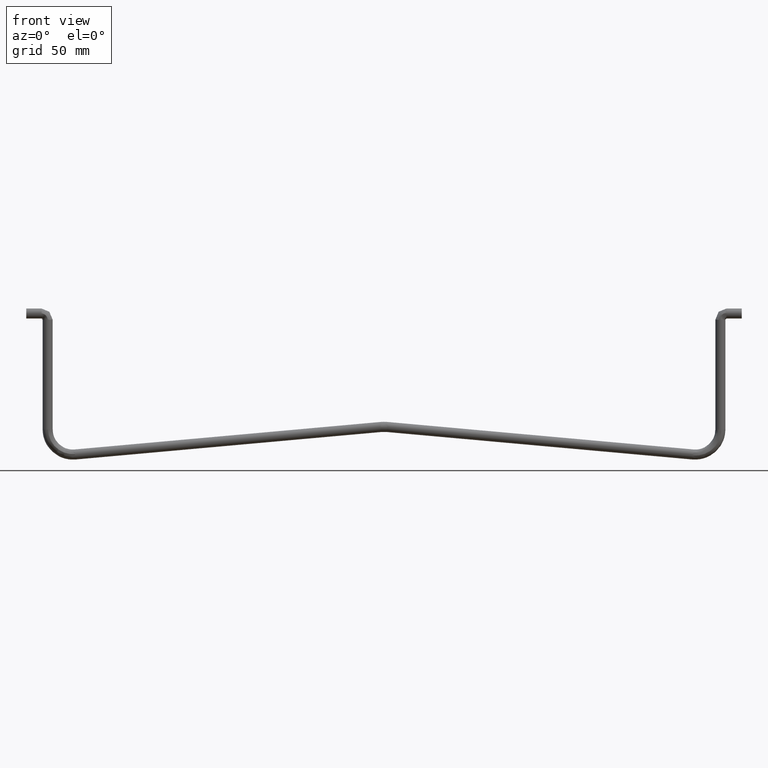
[diagram: clean part render]
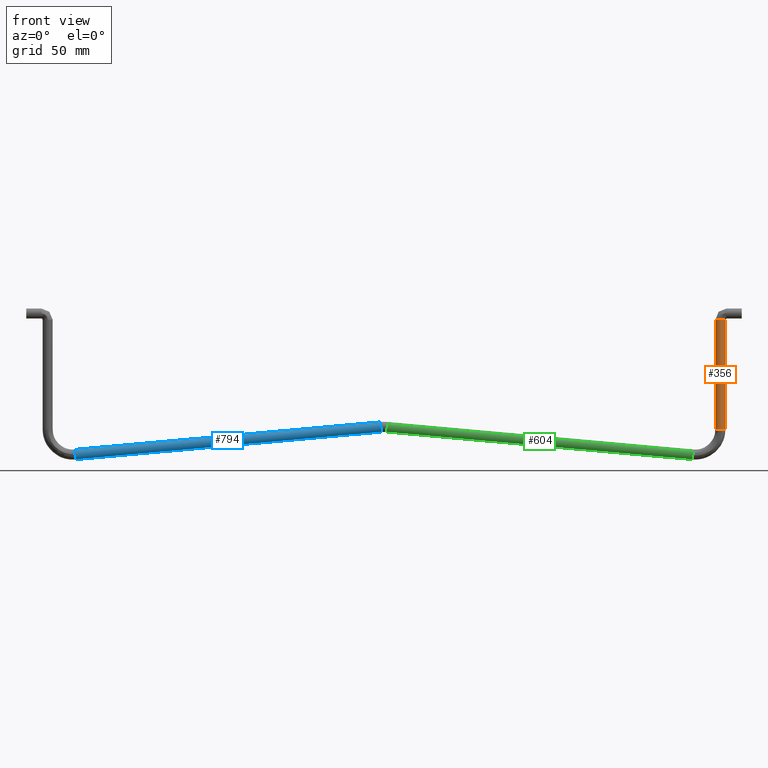
[diagram: same view with three faces highlighted in distinct colors, each labeled with its STEP entity id]
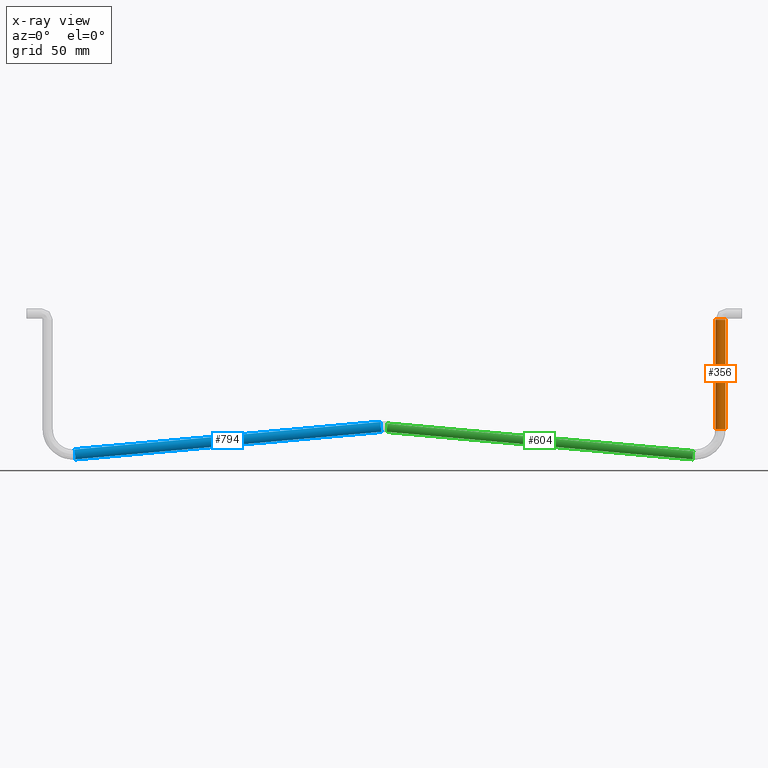
[diagram: x-ray of the same camera — body ghosted, the three highlighted faces saturated]
A machine part, front view with three faces highlighted in distinct colors.
The next image is the same camera in x-ray (body ghosted, the three faces saturated) — at least one of them is partly hidden behind the body in this view.
Their STEP definitions:

[orange] entity #356 — the highlighted face is a freeform B-spline surface patch.
#228=CARTESIAN_POINT('',(131.928746844774930,1.237401924273265,-49.087499836543557));
#229=CARTESIAN_POINT('',(130.760202081047590,-0.246416397818503,-49.087499836543579));
#230=CARTESIAN_POINT('',(132.174759903568510,-1.497911441578003,-49.087499836543557));
#231=CARTESIAN_POINT('',(133.672671345146510,-2.823151538009478,-49.087499836543564));
#232=CARTESIAN_POINT('',(134.997911441578000,-1.325240096431473,-49.087499836543557));
#233=CARTESIAN_POINT('',(136.323151538009480,0.172671345146531,-49.087499836543564));
#234=CARTESIAN_POINT('',(134.825240096431490,1.497911441578005,-49.087499836543557));
#235=CARTESIAN_POINT('',(131.928746844774930,1.237401924273274,-3.385312492407651));
#236=CARTESIAN_POINT('',(130.760202081047590,-0.246416397818495,-3.385312492407650));
#237=CARTESIAN_POINT('',(132.174759903568510,-1.497911441577994,-3.385312492407649));
#238=CARTESIAN_POINT('',(133.672671345146510,-2.823151538009469,-3.385312492407648));
#239=CARTESIAN_POINT('',(134.997911441578000,-1.325240096431465,-3.385312492407649));
#240=CARTESIAN_POINT('',(136.323151538009480,0.172671345146539,-3.385312492407650));
#241=CARTESIAN_POINT('',(134.825240096431490,1.497911441578014,-3.385312492407650));
#249=(BOUNDED_SURFACE()B_SPLINE_SURFACE(2,1,((#228,#235),(#229,#236),(#230,#237),(#231,#238),(#232,#239),(#233,#240),(#234,#241)),.UNSPECIFIED.,.F.,.F.,.U.)B_SPLINE_SURFACE_WITH_KNOTS((3,2,2,3),(2,2),(0.0,3.181160159025374,6.494868658010139,9.808577156994906),(0.0,45.702187344135922),.UNSPECIFIED.)GEOMETRIC_REPRESENTATION_ITEM()RATIONAL_B_SPLINE_SURFACE(((0.977505800795127,0.977505800795127),(0.718822509939086,0.718822509939086),(1.0,1.0),(0.707106781186548,0.707106781186548),(1.0,1.0),(0.707106781186548,0.707106781186548),(1.0,1.0)))REPRESENTATION_ITEM('')SURFACE());
#250=CARTESIAN_POINT('',(131.500000000000000,1.074592E-014,-4.499999999999475));
#251=VERTEX_POINT('',#250);
#252=CARTESIAN_POINT('',(131.928747185595310,1.237402359943538,-4.499999998816865));
#253=VERTEX_POINT('',#252);
#254=CARTESIAN_POINT('',(131.500000000000000,1.074592E-014,-4.499999999999475));
#255=CARTESIAN_POINT('',(131.499937649974410,0.194568121001986,-4.499999999999583));
#256=CARTESIAN_POINT('',(131.565396191270790,0.639277197663003,-4.499999999818940));
#257=CARTESIAN_POINT('',(131.773768713953810,1.040991260141410,-4.499999999244265));
#258=CARTESIAN_POINT('',(131.928747185595310,1.237402359943538,-4.499999998816865));
#259=B_SPLINE_CURVE_WITH_KNOTS('',3,(#254,#255,#256,#257,#258),.UNSPECIFIED.,.F.,.U.,(4,1,4),(0.000000150801917,0.583761390476447,1.334273354011452),.UNSPECIFIED.);
#260=EDGE_CURVE('',#251,#253,#259,.T.);
#261=ORIENTED_EDGE('',*,*,#260,.T.);
#262=CARTESIAN_POINT('',(131.928746695386710,1.237401733351349,-47.999999837839837));
#263=VERTEX_POINT('',#262);
#264=CARTESIAN_POINT('',(131.928746695386710,1.237401733351349,-47.999999837839837));
#265=CARTESIAN_POINT('',(131.928747185595310,1.237402359943538,-4.499999998816865));
#266=QUASI_UNIFORM_CURVE('',1,(#264,#265),.UNSPECIFIED.,.F.,.U.);
#267=EDGE_CURVE('',#263,#253,#266,.T.);
#268=ORIENTED_EDGE('',*,*,#267,.F.);
#269=CARTESIAN_POINT('',(131.500000000000000,1.036690E-015,-47.999999837084701));
#270=VERTEX_POINT('',#269);
#271=CARTESIAN_POINT('',(131.500000000000000,1.036690E-015,-47.999999837084701));
#272=CARTESIAN_POINT('',(131.499755091702810,0.250193503776984,-47.999999837084353));
#273=CARTESIAN_POINT('',(131.584625145994610,0.694701008566557,-47.999999837233872));
#274=CARTESIAN_POINT('',(131.808303726430010,1.084585362971889,-47.999999837627783));
#275=CARTESIAN_POINT('',(131.928746695386710,1.237401733351349,-47.999999837839837));
#276=B_SPLINE_CURVE_WITH_KNOTS('',3,(#271,#272,#273,#274,#275),.UNSPECIFIED.,.F.,.U.,(4,1,4),(0.000000150801335,0.750511666256805,1.334272557372739),.UNSPECIFIED.);
#277=EDGE_CURVE('',#270,#263,#276,.T.);
#278=ORIENTED_EDGE('',*,*,#277,.F.);
#279=CARTESIAN_POINT('',(133.929143425964010,-1.953416473758695,-47.999999837422322));
#280=VERTEX_POINT('',#279);
#281=CARTESIAN_POINT('',(133.929143425964010,-1.953416473758695,-47.999999837422322));
#282=CARTESIAN_POINT('',(133.710979627120790,-2.001497168696750,-47.999999837371377));
#283=CARTESIAN_POINT('',(133.277296403600790,-2.022402078668700,-47.999999837277223));
#284=CARTESIAN_POINT('',(132.714901039557790,-1.865315798936136,-47.999999837171522));
#285=CARTESIAN_POINT('',(132.200014366140010,-1.558344100416835,-47.999999837090328));
#286=CARTESIAN_POINT('',(131.676698030914000,-0.985503487611351,-47.999999837031687));
#287=CARTESIAN_POINT('',(131.498811140327010,-0.372588399928789,-47.999999837049927));
#288=CARTESIAN_POINT('',(131.500000000000000,1.036690E-015,-47.999999837084701));
#289=B_SPLINE_CURVE_WITH_KNOTS('',3,(#281,#282,#283,#284,#285,#286,#287,#288),.UNSPECIFIED.,.F.,.U.,(4,1,1,1,1,4),(0.000000931127789,0.670153733176874,1.284537906219010,1.731367021548772,2.457257089140676,3.574215345803300),.UNSPECIFIED.);
#290=EDGE_CURVE('',#280,#270,#289,.T.);
#291=ORIENTED_EDGE('',*,*,#290,.F.);
#292=CARTESIAN_POINT('',(135.500000000000000,1.036690E-015,-47.999999837084701));
#293=VERTEX_POINT('',#292);
#294=CARTESIAN_POINT('',(135.500000000000000,1.036690E-015,-47.999999837084701));
#295=CARTESIAN_POINT('',(135.500233158979200,-0.254019686281065,-47.999999837084623));
#296=CARTESIAN_POINT('',(135.407367391378810,-0.733521557105774,-47.999999837104589));
#297=CARTESIAN_POINT('',(135.033229221363000,-1.343674669938472,-47.999999837185030));
#298=CARTESIAN_POINT('',(134.521955655956190,-1.758514744752293,-47.999999837294943));
#299=CARTESIAN_POINT('',(134.122094755112410,-1.911087907118927,-47.999999837380791));
#300=CARTESIAN_POINT('',(133.929143425964010,-1.953416473758695,-47.999999837422322));
#301=B_SPLINE_CURVE_WITH_KNOTS('',3,(#294,#295,#296,#297,#298,#299,#300),.UNSPECIFIED.,.F.,.U.,(4,1,1,1,4),(0.000000506545935,0.761991994241405,1.439274268842109,2.116635815031064,2.709288148124744),.UNSPECIFIED.);
#302=EDGE_CURVE('',#293,#280,#301,.T.);
#303=ORIENTED_EDGE('',*,*,#302,.F.);
#304=CARTESIAN_POINT('',(134.825239634409200,1.497911850340510,-47.999999837325618));
#305=VERTEX_POINT('',#304);
#306=CARTESIAN_POINT('',(134.825239634409200,1.497911850340510,-47.999999837325618));
#307=CARTESIAN_POINT('',(135.023575037940590,1.322790620507904,-47.999999837036697));
#308=CARTESIAN_POINT('',(135.370539119090490,0.863702446603220,-47.999999836656592));
#309=CARTESIAN_POINT('',(135.500496269894000,0.299861376549234,-47.999999836837041));
#310=CARTESIAN_POINT('',(135.500000000000000,1.036690E-015,-47.999999837084701));
#311=B_SPLINE_CURVE_WITH_KNOTS('',3,(#306,#307,#308,#309,#310),.UNSPECIFIED.,.F.,.U.,(4,1,4),(0.000000204736148,0.793653476738007,1.693019337918478),.UNSPECIFIED.);
#312=EDGE_CURVE('',#305,#293,#311,.T.);
#313=ORIENTED_EDGE('',*,*,#312,.F.);
#314=CARTESIAN_POINT('',(134.825240099711610,1.497911436500719,-4.499999998138939));
#315=VERTEX_POINT('',#314);
#316=CARTESIAN_POINT('',(134.825239634409200,1.497911850340510,-47.999999837325618));
#317=CARTESIAN_POINT('',(134.825240099711610,1.497911436500719,-4.499999998138939));
#318=QUASI_UNIFORM_CURVE('',1,(#316,#317),.UNSPECIFIED.,.F.,.U.);
#319=EDGE_CURVE('',#305,#315,#318,.T.);
#320=ORIENTED_EDGE('',*,*,#319,.T.);
#321=CARTESIAN_POINT('',(135.500000000000000,1.074592E-014,-4.499999999999475));
#322=VERTEX_POINT('',#321);
#323=CARTESIAN_POINT('',(134.825240099711610,1.497911436500719,-4.499999998138939));
#324=CARTESIAN_POINT('',(135.023564724043500,1.322784190967496,-4.499999998685783));
#325=CARTESIAN_POINT('',(135.370569443971590,0.863716980929139,-4.499999999642601));
#326=CARTESIAN_POINT('',(135.500471279551390,0.299854435499237,-4.500000000000775));
#327=CARTESIAN_POINT('',(135.500000000000000,1.074592E-014,-4.499999999999475));
#328=B_SPLINE_CURVE_WITH_KNOTS('',3,(#323,#324,#325,#326,#327),.UNSPECIFIED.,.F.,.U.,(4,1,4),(0.000000204735029,0.793653184495627,1.693018714586753),.UNSPECIFIED.);
#329=EDGE_CURVE('',#315,#322,#328,.T.);
#330=ORIENTED_EDGE('',*,*,#329,.T.);
#331=CARTESIAN_POINT('',(133.269071517036310,-1.986623274744361,-4.499999988606088));
#332=VERTEX_POINT('',#331);
#333=CARTESIAN_POINT('',(135.500000000000000,1.074592E-014,-4.499999999999475));
#334=CARTESIAN_POINT('',(135.500154610318700,-0.228392381792213,-4.500000001220289));
#335=CARTESIAN_POINT('',(135.420926422263990,-0.685106477883906,-4.500000002877204));
#336=CARTESIAN_POINT('',(135.123041160186690,-1.212880961894198,-4.500000002757338));
#337=CARTESIAN_POINT('',(134.658495818472400,-1.672932815883793,-4.500000000632475));
#338=CARTESIAN_POINT('',(134.048264443571300,-1.978235667942210,-4.499999996244879));
#339=CARTESIAN_POINT('',(133.513351827899210,-2.015189653703718,-4.499999991167438));
#340=CARTESIAN_POINT('',(133.269071517036310,-1.986623274744361,-4.499999988606088));
#341=B_SPLINE_CURVE_WITH_KNOTS('',3,(#333,#334,#335,#336,#337,#338,#339,#340),.UNSPECIFIED.,.F.,.U.,(4,1,1,1,1,4),(0.000000794629175,0.685151803228599,1.370407836997571,1.791928310082230,2.635269238166692,3.373134933001218),.UNSPECIFIED.);
#342=EDGE_CURVE('',#322,#332,#341,.T.);
#343=ORIENTED_EDGE('',*,*,#342,.T.);
#344=CARTESIAN_POINT('',(133.269071517036310,-1.986623274744361,-4.499999988606088));
#345=CARTESIAN_POINT('',(132.907375783520110,-1.945638994525410,-4.499999990935528));
#346=CARTESIAN_POINT('',(132.326070036442900,-1.705706763988918,-4.499999994679325));
#347=CARTESIAN_POINT('',(131.813848450896100,-1.130109543508526,-4.499999997978185));
#348=CARTESIAN_POINT('',(131.558471332034000,-0.575899119689335,-4.499999999622904));
#349=CARTESIAN_POINT('',(131.499885977503310,-0.212206484240867,-4.500000000000215));
#350=CARTESIAN_POINT('',(131.500000000000000,1.074592E-014,-4.499999999999475));
#351=B_SPLINE_CURVE_WITH_KNOTS('',3,(#344,#345,#346,#347,#348,#349,#350),.UNSPECIFIED.,.F.,.U.,(4,1,1,1,4),(0.000000307050962,1.091429866775206,1.818993351768412,2.273749574439024,2.910398448216237),.UNSPECIFIED.);
#352=EDGE_CURVE('',#332,#251,#351,.T.);
#353=ORIENTED_EDGE('',*,*,#352,.T.);
#354=EDGE_LOOP('',(#261,#268,#278,#291,#303,#313,#320,#330,#343,#353));
#355=FACE_OUTER_BOUND('',#354,.T.);
#356=ADVANCED_FACE('',(#355),#249,.T.);

[blue] entity #794 — the highlighted face is a freeform B-spline surface patch.
#621=CARTESIAN_POINT('',(-1.132790072276494,1.474555115114996,-48.393925426537628));
#622=VERTEX_POINT('',#621);
#631=CARTESIAN_POINT('',(-122.483422587907100,1.474554420523467,-59.305568082020322));
#632=VERTEX_POINT('',#631);
#633=CARTESIAN_POINT('',(-122.483422587907100,1.474554420523467,-59.305568082020322));
#634=CARTESIAN_POINT('',(-1.132790072276494,1.474555115114996,-48.393925426537628));
#635=QUASI_UNIFORM_CURVE('',1,(#633,#634),.UNSPECIFIED.,.F.,.U.);
#636=EDGE_CURVE('',#632,#622,#635,.T.);
#648=CARTESIAN_POINT('',(-122.736486933756790,1.351179987749532,-56.491186982097858));
#649=VERTEX_POINT('',#648);
#658=CARTESIAN_POINT('',(-1.385854341065951,1.351180134412678,-45.579545210657152));
#659=VERTEX_POINT('',#658);
#660=CARTESIAN_POINT('',(-122.736486933756790,1.351179987749532,-56.491186982097858));
#661=CARTESIAN_POINT('',(-1.385854341065951,1.351180134412678,-45.579545210657152));
#662=QUASI_UNIFORM_CURVE('',1,(#660,#661),.UNSPECIFIED.,.F.,.U.);
#663=EDGE_CURVE('',#649,#659,#662,.T.);
#676=CARTESIAN_POINT('',(-125.770252718993800,1.351180415231320,-56.763978420392512));
#677=CARTESIAN_POINT('',(-125.891260350705470,-0.123374258388929,-55.418227452504240));
#678=CARTESIAN_POINT('',(-125.759203693524200,-1.474554673620248,-56.886856924082913));
#679=CARTESIAN_POINT('',(-125.627147036343020,-2.825735088851567,-58.355486395661565));
#680=CARTESIAN_POINT('',(-125.506139404631300,-1.351180415231319,-59.701237363549843));
#681=CARTESIAN_POINT('',(-125.385131772919650,0.123374258388930,-61.046988331438101));
#682=CARTESIAN_POINT('',(-125.517188430100900,1.474554673620249,-59.578358859859442));
#683=CARTESIAN_POINT('',(1.723755642005128,1.351180415231322,-45.299934643107719));
#684=CARTESIAN_POINT('',(1.602748010293442,-0.123374258388927,-43.954183675219461));
#685=CARTESIAN_POINT('',(1.734804667474668,-1.474554673620246,-45.422813146798120));
#686=CARTESIAN_POINT('',(1.866861324655893,-2.825735088851565,-46.891442618376793));
#687=CARTESIAN_POINT('',(1.987868956367580,-1.351180415231317,-48.237193586265050));
#688=CARTESIAN_POINT('',(2.108876588079267,0.123374258388932,-49.582944554153315));
#689=CARTESIAN_POINT('',(1.976819930898041,1.474554673620251,-48.114315082574649));
#697=(BOUNDED_SURFACE()B_SPLINE_SURFACE(2,1,((#676,#683),(#677,#684),(#678,#685),(#679,#686),(#680,#687),(#681,#688),(#682,#689)),.UNSPECIFIED.,.F.,.F.,.U.)B_SPLINE_SURFACE_WITH_KNOTS((3,2,2,3),(2,2),(0.0,3.313708498984759,6.627416997969519,9.941125496954278),(0.0,128.008384364782810),.UNSPECIFIED.)GEOMETRIC_REPRESENTATION_ITEM()RATIONAL_B_SPLINE_SURFACE(((1.0,1.0),(0.707106781186548,0.707106781186548),(1.0,1.0),(0.707106781186548,0.707106781186548),(1.0,1.0),(0.707106781186548,0.707106781186548),(1.0,1.0)))REPRESENTATION_ITEM('')SURFACE());
#698=CARTESIAN_POINT('',(-1.074697851381091,0.025132083518596,-49.039981062780292));
#699=VERTEX_POINT('',#698);
#700=CARTESIAN_POINT('',(-1.132790072276494,1.474555115114996,-48.393925426537628));
#701=CARTESIAN_POINT('',(-1.113667422388218,1.279478759314274,-48.606592381765999));
#702=CARTESIAN_POINT('',(-1.085057471465094,0.823027723750731,-48.924769579361197));
#703=CARTESIAN_POINT('',(-1.074964636001240,0.280307946736652,-49.037014095692598));
#704=CARTESIAN_POINT('',(-1.074697851381091,0.025132083518596,-49.039981062780292));
#705=B_SPLINE_CURVE_WITH_KNOTS('',3,(#700,#701,#702,#703,#704),.UNSPECIFIED.,.F.,.U.,(4,1,4),(0.000000171005639,0.867472651438045,1.632974979272249),.UNSPECIFIED.);
#706=EDGE_CURVE('',#622,#699,#705,.T.);
#707=ORIENTED_EDGE('',*,*,#706,.T.);
#708=CARTESIAN_POINT('',(-1.074683709293724,1.918668E-015,-49.040138339883697));
#709=VERTEX_POINT('',#708);
#710=CARTESIAN_POINT('',(-1.074697851381091,0.025132083518596,-49.039981062780292));
#711=CARTESIAN_POINT('',(-1.074683709293724,1.918668E-015,-49.040138339883697));
#712=QUASI_UNIFORM_CURVE('',1,(#710,#711),.UNSPECIFIED.,.F.,.U.);
#713=EDGE_CURVE('',#699,#709,#712,.T.);
#714=ORIENTED_EDGE('',*,*,#713,.T.);
#715=CARTESIAN_POINT('',(-1.241307462499975,-1.995131347599907,-47.187081024673077));
#716=VERTEX_POINT('',#715);
#717=CARTESIAN_POINT('',(-1.074683709293724,1.918668E-015,-49.040138339883697));
#718=CARTESIAN_POINT('',(-1.074674113062174,-0.218891836035657,-49.040245061564939));
#719=CARTESIAN_POINT('',(-1.081643157295019,-0.687948220007406,-48.962740875353667));
#720=CARTESIAN_POINT('',(-1.113963637121464,-1.324722297952502,-48.603298116317021));
#721=CARTESIAN_POINT('',(-1.169410717669693,-1.824640958773372,-47.986659634468772));
#722=CARTESIAN_POINT('',(-1.216155516878637,-1.975847661965424,-47.466801028145120));
#723=CARTESIAN_POINT('',(-1.241307462499975,-1.995131347599907,-47.187081024673077));
#724=B_SPLINE_CURVE_WITH_KNOTS('',3,(#717,#718,#719,#720,#721,#722,#723),.UNSPECIFIED.,.F.,.U.,(4,1,1,1,4),(0.000000362935759,0.656750144212964,1.407329404220578,2.157893884137816,3.002287842785370),.UNSPECIFIED.);
#725=EDGE_CURVE('',#709,#716,#724,.T.);
#726=ORIENTED_EDGE('',*,*,#725,.T.);
#727=CARTESIAN_POINT('',(-1.432911612385320,1.915715E-015,-45.056211537161708));
#728=VERTEX_POINT('',#727);
#729=CARTESIAN_POINT('',(-1.241307462499975,-1.995131347599907,-47.187081024673077));
#730=CARTESIAN_POINT('',(-1.261154880172630,-2.010712847095756,-46.966353776589401));
#731=CARTESIAN_POINT('',(-1.304404247258432,-1.963783684527120,-46.485368595765891));
#732=CARTESIAN_POINT('',(-1.364605033141588,-1.634443113090355,-45.815863170957030));
#733=CARTESIAN_POINT('',(-1.417673852916730,-0.973230728320294,-45.225673820339559));
#734=CARTESIAN_POINT('',(-1.432992075778188,-0.359066060389410,-45.055316687073713));
#735=CARTESIAN_POINT('',(-1.432911612385320,1.915715E-015,-45.056211537161708));
#736=B_SPLINE_CURVE_WITH_KNOTS('',3,(#729,#730,#731,#732,#733,#734,#735),.UNSPECIFIED.,.F.,.U.,(4,1,1,1,4),(0.000000784370563,0.666499354325753,1.435600395560552,2.204579753027035,3.281262252200730),.UNSPECIFIED.);
#737=EDGE_CURVE('',#716,#728,#736,.T.);
#738=ORIENTED_EDGE('',*,*,#737,.T.);
#739=CARTESIAN_POINT('',(-1.432911612385320,1.915715E-015,-45.056211537161708));
#740=CARTESIAN_POINT('',(-1.432922995163343,0.216349741194782,-45.056084946927662));
#741=CARTESIAN_POINT('',(-1.425652658300500,0.710805445689762,-45.136939870967019));
#742=CARTESIAN_POINT('',(-1.402713666398710,1.146295578803257,-45.392049157197029));
#743=CARTESIAN_POINT('',(-1.385854341065951,1.351180134412678,-45.579545210657152));
#744=B_SPLINE_CURVE_WITH_KNOTS('',3,(#739,#740,#741,#742,#743),.UNSPECIFIED.,.F.,.U.,(4,1,4),(0.000000127960899,0.649102852537409,1.483662216824048),.UNSPECIFIED.);
#745=EDGE_CURVE('',#728,#659,#744,.T.);
#746=ORIENTED_EDGE('',*,*,#745,.T.);
#747=ORIENTED_EDGE('',*,*,#663,.F.);
#748=CARTESIAN_POINT('',(-122.783544193816200,4.178527E-016,-55.967853442525907));
#749=VERTEX_POINT('',#748);
#750=CARTESIAN_POINT('',(-122.783544193816200,4.178527E-016,-55.967853442525907));
#751=CARTESIAN_POINT('',(-122.783578161503400,0.278230327129153,-55.967475673321701));
#752=CARTESIAN_POINT('',(-122.774141014428910,0.772377193028896,-56.072428135347252));
#753=CARTESIAN_POINT('',(-122.749585999952000,1.191741279376897,-56.345509546928739));
#754=CARTESIAN_POINT('',(-122.736486933756790,1.351179987749532,-56.491186982097858));
#755=B_SPLINE_CURVE_WITH_KNOTS('',3,(#750,#751,#752,#753,#754),.UNSPECIFIED.,.F.,.U.,(4,1,4),(0.000000127960834,0.834559380322133,1.483662017844840),.UNSPECIFIED.);
#756=EDGE_CURVE('',#749,#649,#755,.T.);
#757=ORIENTED_EDGE('',*,*,#756,.F.);
#758=CARTESIAN_POINT('',(-122.620165623193800,-1.992267216788548,-57.784820459076244));
#759=VERTEX_POINT('',#758);
#760=CARTESIAN_POINT('',(-122.620165623193800,-1.992267216788548,-57.784820459076244));
#761=CARTESIAN_POINT('',(-122.642217506960900,-1.970765959989073,-57.539576879671323));
#762=CARTESIAN_POINT('',(-122.682854599715200,-1.843181630527320,-57.087643331093240));
#763=CARTESIAN_POINT('',(-122.735310336954700,-1.424508590391845,-56.504272182540333));
#764=CARTESIAN_POINT('',(-122.773574201854200,-0.802948769949400,-56.078731793835672));
#765=CARTESIAN_POINT('',(-122.783576389833100,-0.278095928967061,-55.967495383936267));
#766=CARTESIAN_POINT('',(-122.783544193816200,4.178527E-016,-55.967853442525907));
#767=B_SPLINE_CURVE_WITH_KNOTS('',3,(#760,#761,#762,#763,#764,#765,#766),.UNSPECIFIED.,.F.,.U.,(4,1,1,1,4),(0.000000339767127,0.741482477884388,1.390287032430861,2.131760689986245,2.965928555879855),.UNSPECIFIED.);
#768=EDGE_CURVE('',#759,#749,#767,.T.);
#769=ORIENTED_EDGE('',*,*,#768,.F.);
#770=CARTESIAN_POINT('',(-122.425316290724600,4.208052E-016,-59.951780245247903));
#771=VERTEX_POINT('',#770);
#772=CARTESIAN_POINT('',(-122.425316290724600,4.208052E-016,-59.951780245247903));
#773=CARTESIAN_POINT('',(-122.425295230490700,-0.259224366768433,-59.952014454769582));
#774=CARTESIAN_POINT('',(-122.432333477515500,-0.656425444127846,-59.873740644596900));
#775=CARTESIAN_POINT('',(-122.456616505821400,-1.161497988138769,-59.603684051340451));
#776=CARTESIAN_POINT('',(-122.490771012604200,-1.591945891114424,-59.223844705089043));
#777=CARTESIAN_POINT('',(-122.546846766230200,-1.951118737604132,-58.600214638565063));
#778=CARTESIAN_POINT('',(-122.595500206031010,-2.016918400904795,-58.059129666286978));
#779=CARTESIAN_POINT('',(-122.620165623193800,-1.992267216788548,-57.784820459076244));
#780=B_SPLINE_CURVE_WITH_KNOTS('',3,(#772,#773,#774,#775,#776,#777,#778,#779),.UNSPECIFIED.,.F.,.U.,(4,1,1,1,1,4),(0.000000732359946,0.777565054985090,1.192298742755480,1.710547475816990,2.488211265685028,3.317614691867133),.UNSPECIFIED.);
#781=EDGE_CURVE('',#771,#759,#780,.T.);
#782=ORIENTED_EDGE('',*,*,#781,.F.);
#783=CARTESIAN_POINT('',(-122.483422587907100,1.474554420523467,-59.305568082020322));
#784=CARTESIAN_POINT('',(-122.462851672385900,1.264883720566417,-59.534341493218669));
#785=CARTESIAN_POINT('',(-122.434403318476100,0.794384053765805,-59.850721527944962));
#786=CARTESIAN_POINT('',(-122.425301296589590,0.241821385863466,-59.951946998128250));
#787=CARTESIAN_POINT('',(-122.425316290724600,4.208052E-016,-59.951780245247903));
#788=B_SPLINE_CURVE_WITH_KNOTS('',3,(#783,#784,#785,#786,#787),.UNSPECIFIED.,.F.,.U.,(4,1,4),(0.000000184536620,0.932668910595743,1.658108773168431),.UNSPECIFIED.);
#789=EDGE_CURVE('',#632,#771,#788,.T.);
#790=ORIENTED_EDGE('',*,*,#789,.F.);
#791=ORIENTED_EDGE('',*,*,#636,.T.);
#792=EDGE_LOOP('',(#707,#714,#726,#738,#746,#747,#757,#769,#782,#790,#791));
#793=FACE_OUTER_BOUND('',#792,.T.);
#794=ADVANCED_FACE('',(#793),#697,.T.);

[green] entity #604 — the highlighted face is a freeform B-spline surface patch.
#436=CARTESIAN_POINT('',(1.139193163025730,1.537014186612701,-48.322715325970442));
#437=VERTEX_POINT('',#436);
#458=CARTESIAN_POINT('',(1.368402234731515,-1.537013478530440,-45.773633704019282));
#459=VERTEX_POINT('',#458);
#468=CARTESIAN_POINT('',(122.719034757161100,-1.537014029378297,-56.685276268364582));
#469=VERTEX_POINT('',#468);
#470=CARTESIAN_POINT('',(1.368402234731515,-1.537013478530440,-45.773633704019282));
#471=CARTESIAN_POINT('',(122.719034757161100,-1.537014029378297,-56.685276268364582));
#472=QUASI_UNIFORM_CURVE('',1,(#470,#471),.UNSPECIFIED.,.F.,.U.);
#473=EDGE_CURVE('',#459,#469,#472,.T.);
#497=CARTESIAN_POINT('',(122.489825696840800,1.537013738999619,-59.234357766847538));
#498=VERTEX_POINT('',#497);
#507=CARTESIAN_POINT('',(1.139193163025730,1.537014186612701,-48.322715325970442));
#508=CARTESIAN_POINT('',(122.489825696840800,1.537013738999619,-59.234357766847538));
#509=QUASI_UNIFORM_CURVE('',1,(#507,#508),.UNSPECIFIED.,.F.,.U.);
#510=EDGE_CURVE('',#437,#498,#509,.T.);
#515=CARTESIAN_POINT('',(-1.665363618581982,-1.537013836734710,-45.500843084869302));
#516=CARTESIAN_POINT('',(-1.803013929521039,-2.816696791878695,-47.031680739949792));
#517=CARTESIAN_POINT('',(-1.917618464931858,-1.279682955143983,-48.306221545945938));
#518=CARTESIAN_POINT('',(-2.032223000342677,0.257330881590728,-49.580762351942070));
#519=CARTESIAN_POINT('',(-1.894572689403619,1.537013836734712,-48.049924696861602));
#520=CARTESIAN_POINT('',(125.828644743423990,-1.537013836734712,-56.964886862244320));
#521=CARTESIAN_POINT('',(125.690994432484980,-2.816696791878697,-58.495724517324810));
#522=CARTESIAN_POINT('',(125.576389897074190,-1.279682955143985,-59.770265323320963));
#523=CARTESIAN_POINT('',(125.461785361663360,0.257330881590726,-61.044806129317095));
#524=CARTESIAN_POINT('',(125.599435672602400,1.537013836734710,-59.513968474236613));
#532=(BOUNDED_SURFACE()B_SPLINE_SURFACE(2,1,((#515,#520),(#516,#521),(#517,#522),(#518,#523),(#519,#524)),.UNSPECIFIED.,.F.,.F.,.U.)B_SPLINE_SURFACE_WITH_KNOTS((3,2,3),(2,2),(0.0,3.313708498984765,6.627416997969530),(0.0,128.008384365793890),.UNSPECIFIED.)GEOMETRIC_REPRESENTATION_ITEM()RATIONAL_B_SPLINE_SURFACE(((1.0,1.0),(0.707106781186548,0.707106781186548),(1.0,1.0),(0.707106781186548,0.707106781186548),(1.0,1.0)))REPRESENTATION_ITEM('')SURFACE());
#533=CARTESIAN_POINT('',(1.074697851344037,0.025132083355684,-49.039981062782523));
#534=VERTEX_POINT('',#533);
#535=CARTESIAN_POINT('',(1.139193163025730,1.537014186612701,-48.322715325970442));
#536=CARTESIAN_POINT('',(1.124323208628706,1.398882043288865,-48.488087172680721));
#537=CARTESIAN_POINT('',(1.090076108275896,0.957979299216919,-48.868956278167012));
#538=CARTESIAN_POINT('',(1.075005425963599,0.385365392108494,-49.036560461651291));
#539=CARTESIAN_POINT('',(1.074697851344037,0.025132083355684,-49.039981062782523));
#540=B_SPLINE_CURVE_WITH_KNOTS('',3,(#535,#536,#537,#538,#539),.UNSPECIFIED.,.F.,.U.,(4,1,4),(0.000000226662327,0.647995697859212,1.727928968018266),.UNSPECIFIED.);
#541=EDGE_CURVE('',#437,#534,#540,.T.);
#542=ORIENTED_EDGE('',*,*,#541,.F.);
#543=ORIENTED_EDGE('',*,*,#510,.T.);
#544=CARTESIAN_POINT('',(122.425316290725800,-2.510037E-015,-59.951780245251193));
#545=VERTEX_POINT('',#544);
#546=CARTESIAN_POINT('',(122.489825696840800,1.537013738999619,-59.234357766847538));
#547=CARTESIAN_POINT('',(122.468424514296700,1.338759273409828,-59.472364749857213));
#548=CARTESIAN_POINT('',(122.436239860020710,0.858015153444791,-59.830296957816273));
#549=CARTESIAN_POINT('',(122.425290283577200,0.273968572107063,-59.952069472096198));
#550=CARTESIAN_POINT('',(122.425316290725800,-2.510037E-015,-59.951780245251193));
#551=B_SPLINE_CURVE_WITH_KNOTS('',3,(#546,#547,#548,#549,#550),.UNSPECIFIED.,.F.,.U.,(4,1,4),(0.000000243578945,0.931258916058687,1.753063335440330),.UNSPECIFIED.);
#552=EDGE_CURVE('',#498,#545,#551,.T.);
#553=ORIENTED_EDGE('',*,*,#552,.T.);
#554=CARTESIAN_POINT('',(122.565997458471000,-1.953416468628957,-58.387235866885803));
#555=VERTEX_POINT('',#554);
#556=CARTESIAN_POINT('',(122.425316290725800,-2.510037E-015,-59.951780245251193));
#557=CARTESIAN_POINT('',(122.425295408862000,-0.254013056556118,-59.952012476781192));
#558=CARTESIAN_POINT('',(122.433612109673800,-0.733524204945327,-59.859520726034660));
#559=CARTESIAN_POINT('',(122.467119152439200,-1.343682362561034,-59.486881969654910));
#560=CARTESIAN_POINT('',(122.512906395707900,-1.758496556350023,-58.977672562281967));
#561=CARTESIAN_POINT('',(122.548717752911600,-1.911100740281779,-58.579407048185040));
#562=CARTESIAN_POINT('',(122.565997458471000,-1.953416468628957,-58.387235866885803));
#563=B_SPLINE_CURVE_WITH_KNOTS('',3,(#556,#557,#558,#559,#560,#561,#562),.UNSPECIFIED.,.F.,.U.,(4,1,1,1,4),(0.000000506544012,0.761991986326602,1.439274253895170,2.116635793048616,2.709288119988016),.UNSPECIFIED.);
#564=EDGE_CURVE('',#545,#555,#563,.T.);
#565=ORIENTED_EDGE('',*,*,#564,.T.);
#566=CARTESIAN_POINT('',(122.565997458471000,-1.953416468628957,-58.387235866885803));
#567=CARTESIAN_POINT('',(122.594202080946100,-2.023201536260566,-58.073566397117773));
#568=CARTESIAN_POINT('',(122.650137622821700,-2.006047247541781,-57.451495610658327));
#569=CARTESIAN_POINT('',(122.699467182146610,-1.719400988209993,-56.902891333821110));
#570=CARTESIAN_POINT('',(122.719034757161100,-1.537014029378297,-56.685276268364582));
#571=B_SPLINE_CURVE_WITH_KNOTS('',3,(#566,#567,#568,#569,#570),.UNSPECIFIED.,.F.,.U.,(4,1,4),(0.000000233708655,0.967438195298360,1.821151705090389),.UNSPECIFIED.);
#572=EDGE_CURVE('',#555,#469,#571,.T.);
#573=ORIENTED_EDGE('',*,*,#572,.T.);
#574=ORIENTED_EDGE('',*,*,#473,.F.);
#575=CARTESIAN_POINT('',(1.241307461843110,-1.995131347210852,-47.187081030205597));
#576=VERTEX_POINT('',#575);
#577=CARTESIAN_POINT('',(1.241307461843110,-1.995131347210852,-47.187081030205597));
#578=CARTESIAN_POINT('',(1.266911425494464,-2.015549740138936,-46.902334040731482));
#579=CARTESIAN_POINT('',(1.313077765106827,-1.939341770094754,-46.388908603964907));
#580=CARTESIAN_POINT('',(1.353072300466030,-1.679731739164718,-45.944121082135183));
#581=CARTESIAN_POINT('',(1.368402234731515,-1.537013478530440,-45.773633704019282));
#582=B_SPLINE_CURVE_WITH_KNOTS('',3,(#577,#578,#579,#580,#581),.UNSPECIFIED.,.F.,.U.,(4,1,4),(0.000000148618856,0.859673434590653,1.528309368434121),.UNSPECIFIED.);
#583=EDGE_CURVE('',#576,#459,#582,.T.);
#584=ORIENTED_EDGE('',*,*,#583,.F.);
#585=CARTESIAN_POINT('',(1.074683709255785,7.065003E-016,-49.040138339883796));
#586=VERTEX_POINT('',#585);
#587=CARTESIAN_POINT('',(1.074683709255785,7.065003E-016,-49.040138339883796));
#588=CARTESIAN_POINT('',(1.074652558800783,-0.281510774611543,-49.040484770554400));
#589=CARTESIAN_POINT('',(1.084901794385289,-0.812739049997776,-48.926500895965233));
#590=CARTESIAN_POINT('',(1.125696506724260,-1.465219640644694,-48.472814439370097));
#591=CARTESIAN_POINT('',(1.180333568853267,-1.869637869406335,-47.865184339906953));
#592=CARTESIAN_POINT('',(1.221750251002003,-1.979974367802186,-47.404580828063473));
#593=CARTESIAN_POINT('',(1.241307461843110,-1.995131347210852,-47.187081030205597));
#594=B_SPLINE_CURVE_WITH_KNOTS('',3,(#587,#588,#589,#590,#591,#592,#593),.UNSPECIFIED.,.F.,.U.,(4,1,1,1,4),(0.000000362935616,0.844394319660235,1.594958797868113,2.345538056166129,3.002287835947465),.UNSPECIFIED.);
#595=EDGE_CURVE('',#586,#576,#594,.T.);
#596=ORIENTED_EDGE('',*,*,#595,.F.);
#597=CARTESIAN_POINT('',(1.074697851344037,0.025132083355684,-49.039981062782523));
#598=CARTESIAN_POINT('',(1.074683709255785,7.065003E-016,-49.040138339883796));
#599=QUASI_UNIFORM_CURVE('',1,(#597,#598),.UNSPECIFIED.,.F.,.U.);
#600=EDGE_CURVE('',#534,#586,#599,.T.);
#601=ORIENTED_EDGE('',*,*,#600,.F.);
#602=EDGE_LOOP('',(#542,#543,#553,#565,#573,#574,#584,#596,#601));
#603=FACE_OUTER_BOUND('',#602,.T.);
#604=ADVANCED_FACE('',(#603),#532,.T.);